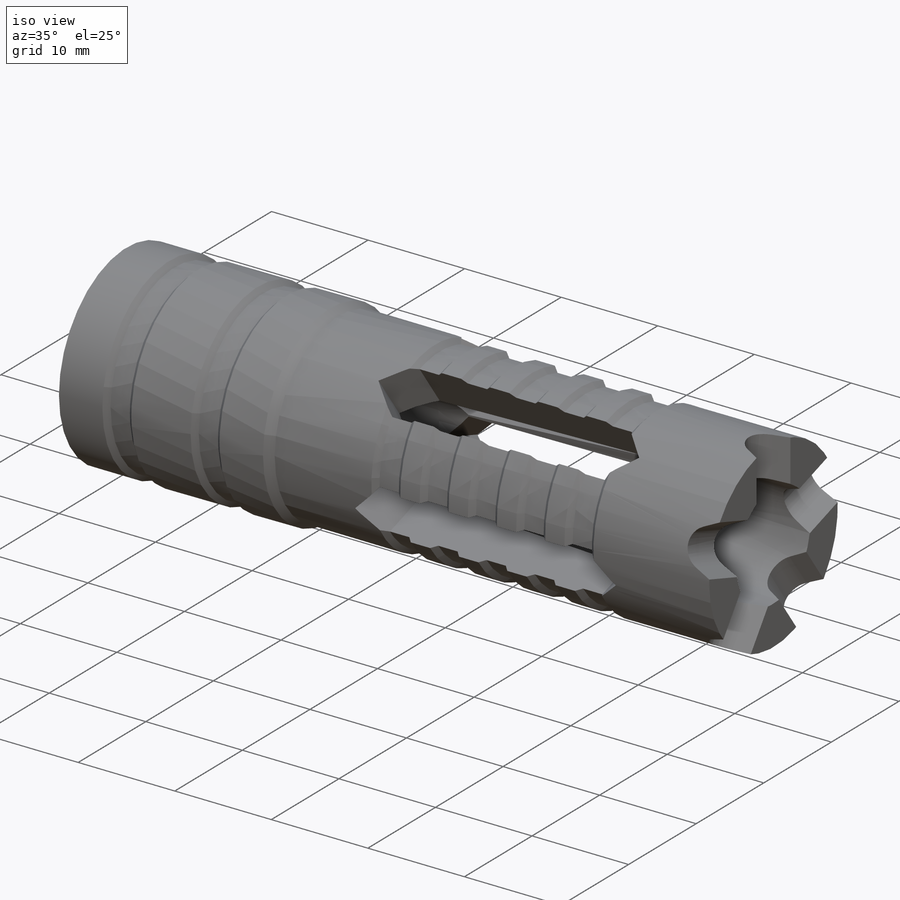
[diagram: iso view]
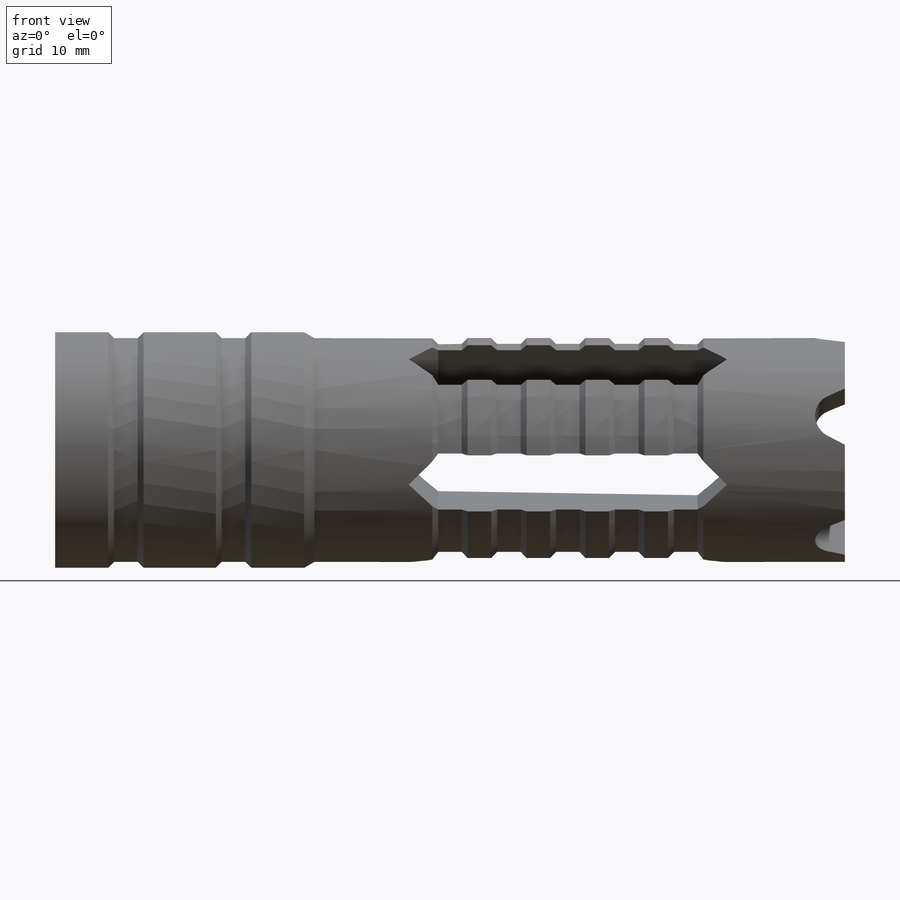
[diagram: front view]
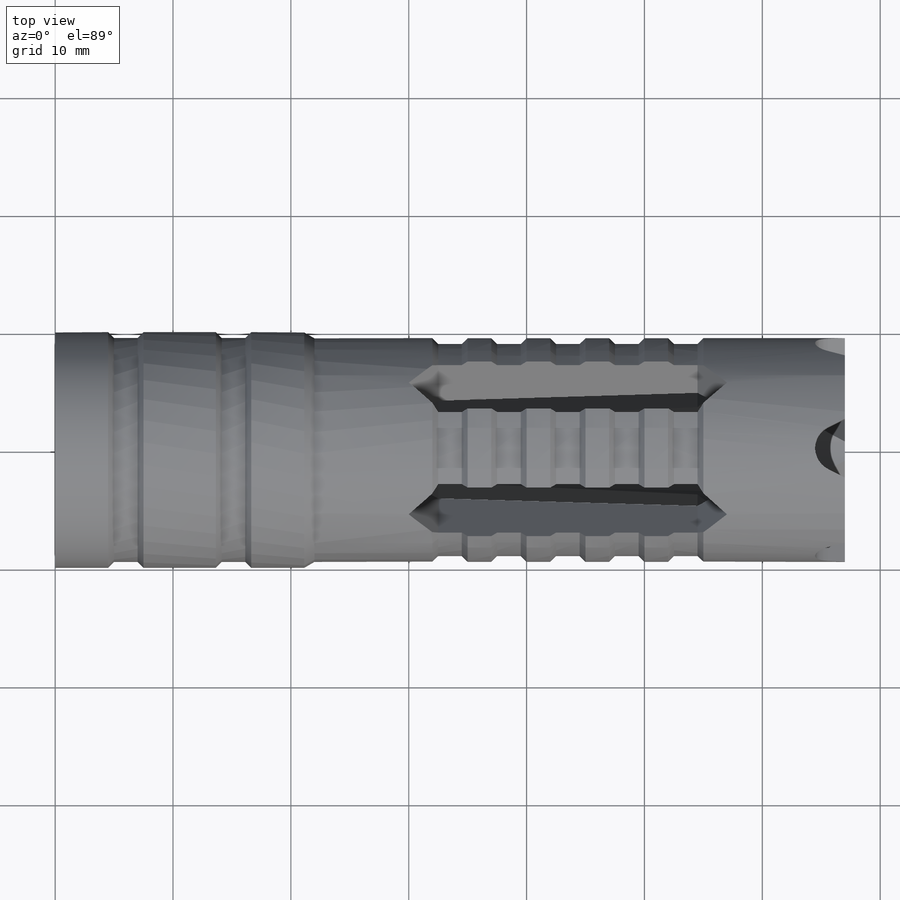
[diagram: top view]
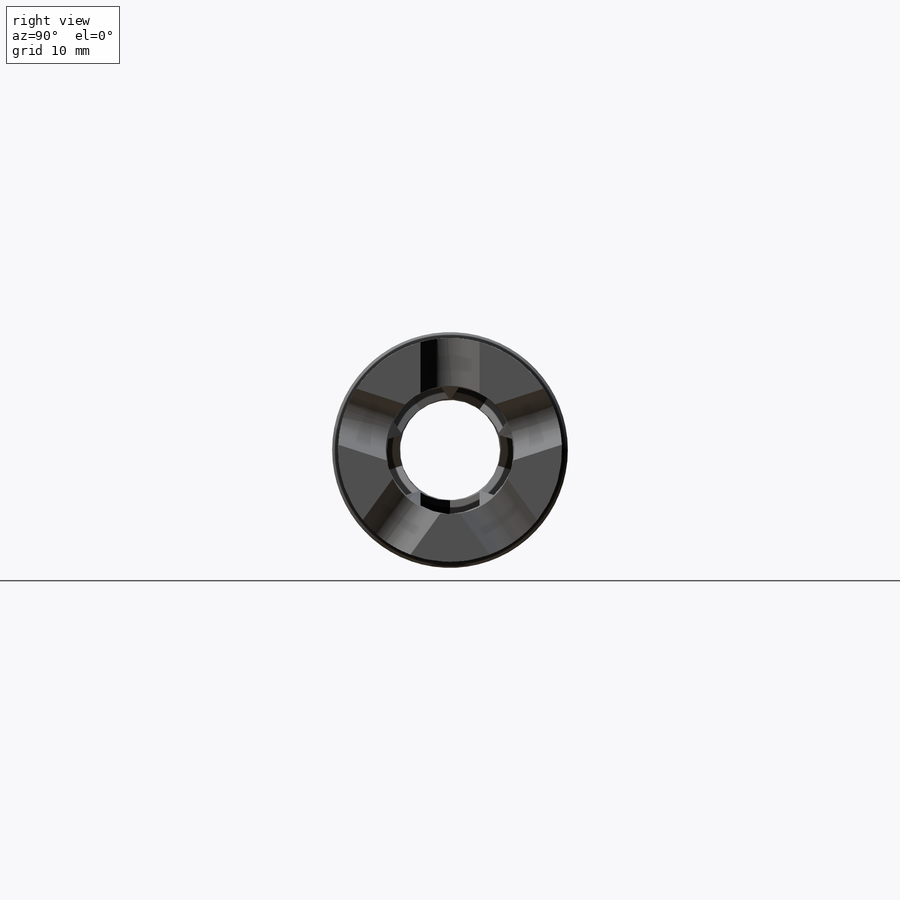
[diagram: right view]
SOLIDWORKS PART (.sldprt)
format: sldprt  version: not decoded by parser v0  size: 634,880 bytes
history: native  units: mm
features: sketch x16, extrude x7, chamfer x5, cut_extrude x4, fillet x2, pattern_circular x2, cut_revolve x2, material x1, revolve x1, pattern_linear x1 (+12 scaffold rows collapsed)
feature tree (53):
  scaffold x12  (default folders/planes/origin — collapsed)
  material  "Material <not specified>"
  sketch  "Sketch1"  dims[c1.D1=17.0mm c1.D2=6.5mm c2.D1=2.0mm]
  extrude  "Boss-Extrude1"  Depth=70mm
  sketch  "Sketch2"  dims[D1=1.0mm]
  extrude  "Boss-Extrude2"  Depth=5mm
  sketch  "3DSketch1"  dims[D1=10.0mm]
  sketch  "Sketch3"  dims[D1=12.0mm]
  extrude  "Boss-Extrude3"  Depth=12mm
  chamfer  "Chamfer2"  Distance=1.5mm Angle=60deg
  sketch  "Sketch4"  dims[c1.D1=4.25mm c1.D2=10.0mm c2.D1=1.5mm]
  revolve  "Revolve1"  Angle=360deg
  sketch  "Sketch9"  dims[D1=~12.557526mm]
  extrude  "Boss-Extrude4"  Depth=5mm
  chamfer  "Chamfer3"  Distance=1.5mm Angle=60deg
  fillet  "Fillet2"  Radius=1mm
  sketch  "Sketch10"  dims[D1=~7.072602mm]
  extrude  "Boss-Extrude5"  [1 undecoded]
  sketch  "Sketch11"  dims[D1=0.0mm D2=0.0mm]
  extrude  "Boss-Extrude8"  Depth=10mm
  sketch  "Sketch12"  dims[D1=9.5mm]
  cut_extrude  "Cut-Extrude2"  Depth=24mm
  sketch  "Sketch13"
  cut_extrude  "Cut-Extrude3"  Depth=13mm
  sketch  "Sketch14"  dims[D1=2.0mm]
  sketch  "Sketch15"  dims[D1=0.0mm D2=0.0mm]
  extrude  "Boss-Extrude9"  Depth=10mm
  cut_extrude  "Cut-Extrude5"  Depth=10mm
  pattern_circular  "CirPattern1"  Count=5 Angle=360deg
  sketch  "3DSketch2"
  sketch  "Sketch16"
  cut_extrude  "Cut-Extrude6"  Depth=5mm
  pattern_circular  "CirPattern2"  Count=5 Angle=360deg
  fillet  "Fillet3"  Radius=2mm
  sketch  "Sketch17"  dims[D1=6.0mm D2=6.0mm D3=3.0mm D4=3.0mm]
  cut_revolve  "Cut-Revolve1"  Angle=360deg
  chamfer  "Chamfer4"  Distance=0.5mm Angle=45deg
  sketch  "Sketch18"  dims[c1.D1=2.0mm c1.D2=1.5mm c1.D3=2.0mm c2.D2=0.5mm]
  cut_revolve  "Cut-Revolve3"  Angle=360deg
  pattern_linear  "LPattern1"  Count1=5 Count2=1 Spacing1=5mm Spacing2=10mm
  chamfer  "Chamfer5"  Distance=0.5mm Angle=45deg
  chamfer  "Chamfer6"  Distance=0.5mm Angle=45deg
decode coverage: 36 of 40 modeling features carry decoded parameters
note: ~ marks probable driven/reference dimensions
note: 1 parameter value undecoded
note: suppression state not decoded; provenance and decode notes live in map.json
